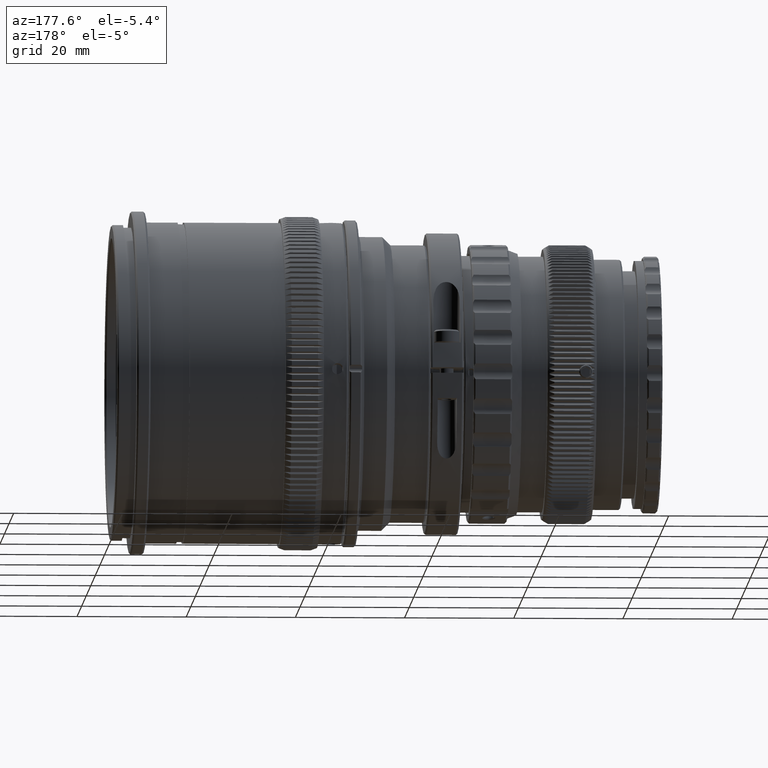
[diagram: clean part render]
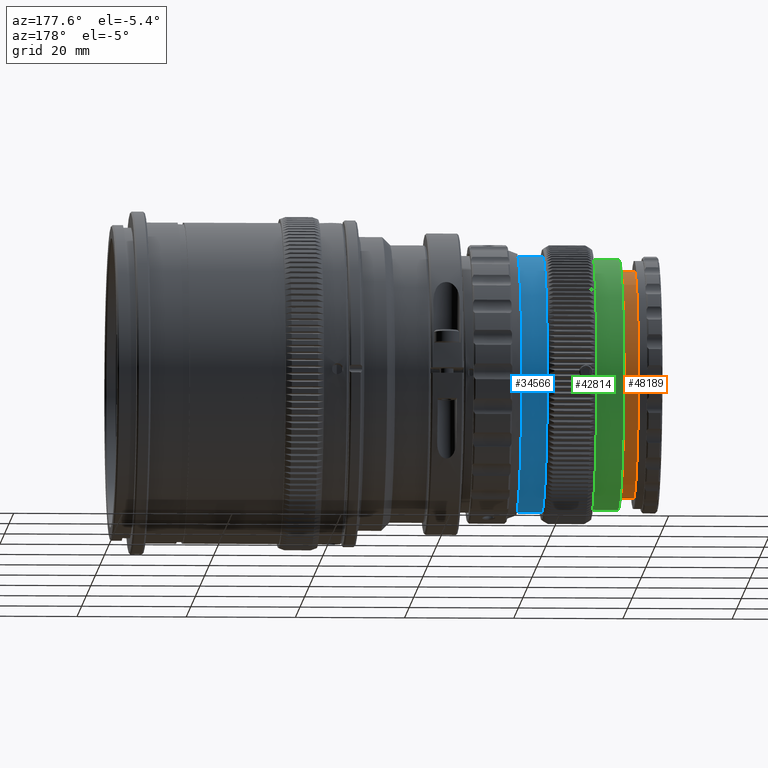
[diagram: same view with three faces highlighted in distinct colors, each labeled with its STEP entity id]
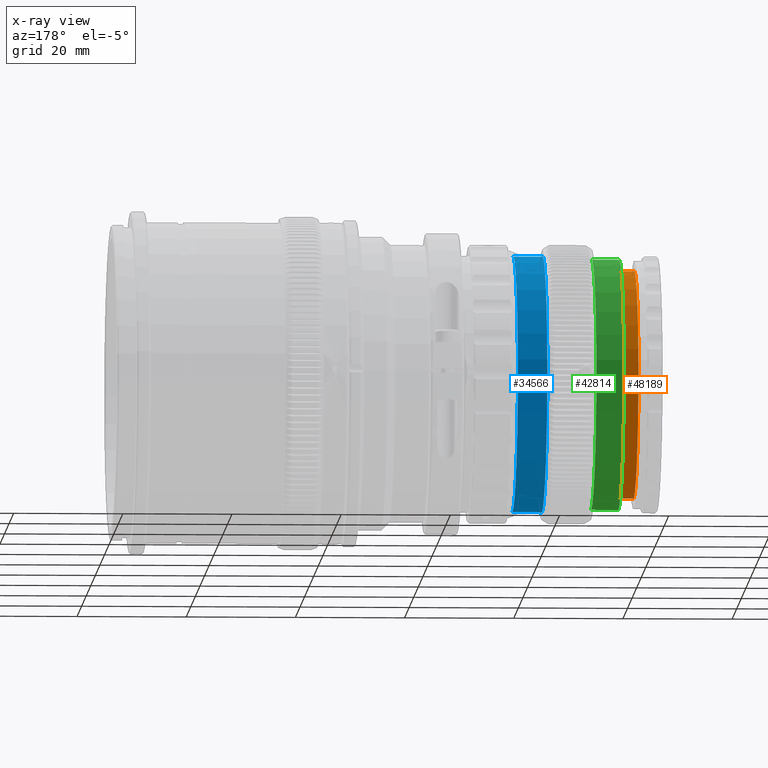
[diagram: x-ray of the same camera — body ghosted, the three highlighted faces saturated]
A machine part, auxiliary view with three faces highlighted in distinct colors.
The next image is the same camera in x-ray (body ghosted, the three faces saturated) — at least one of them is partly hidden behind the body in this view.
Their STEP definitions:

[orange] entity #48189 — the highlighted cylindrical surface (partial cylindrical patch) has radius 20.9 mm, axis along (-1, -0, -0).
#433 = CARTESIAN_POINT ( 'NONE',  ( -57.78904247734860200, 2.342671375720867400E-015, -20.89999999999999900 ) ) ;
#12004 = ORIENTED_EDGE ( 'NONE', *, *, #72750, .T. ) ;
#12377 = DIRECTION ( 'NONE',  ( 0.0000000000000000000, 0.0000000000000000000, 1.000000000000000000 ) ) ;
#12557 = FACE_OUTER_BOUND ( 'NONE', #58946, .T. ) ;
#13363 = EDGE_CURVE ( 'NONE', #27593, #34707, #46243, .T. ) ;
#13941 = CARTESIAN_POINT ( 'NONE',  ( -39.98904247734859800, -2.168404344971008900E-016, 20.89999999999999900 ) ) ;
#17643 = VERTEX_POINT ( 'NONE', #433 ) ;
#19867 = CARTESIAN_POINT ( 'NONE',  ( -39.98904247734859800, 2.342671375720867400E-015, -20.89999999999999900 ) ) ;
#22526 = AXIS2_PLACEMENT_3D ( 'NONE', #36447, #80787, #49221 ) ;
#22879 = CARTESIAN_POINT ( 'NONE',  ( -53.98904247734859800, 2.342671375720867400E-015, -20.89999999999999900 ) ) ;
#27412 = CARTESIAN_POINT ( 'NONE',  ( -57.78904247734860200, -2.168404344971008900E-016, 20.89999999999999900 ) ) ;
#27593 = VERTEX_POINT ( 'NONE', #63967 ) ;
#28146 = AXIS2_PLACEMENT_3D ( 'NONE', #57112, #43995, #37120 ) ;
#28167 = EDGE_CURVE ( 'NONE', #27593, #68499, #75854, .T. ) ;
#33372 = VECTOR ( 'NONE', #58424, 1000.000000000000000 ) ;
#34707 = VERTEX_POINT ( 'NONE', #27412 ) ;
#36447 = CARTESIAN_POINT ( 'NONE',  ( -53.98904247734859800, -2.168404344971008900E-016, 0.0000000000000000000 ) ) ;
#37120 = DIRECTION ( 'NONE',  ( 0.0000000000000000000, 0.0000000000000000000, 1.000000000000000000 ) ) ;
#37664 = CARTESIAN_POINT ( 'NONE',  ( -57.78904247734860200, -2.168404344971008900E-016, 0.0000000000000000000 ) ) ;
#37935 = DIRECTION ( 'NONE',  ( 1.000000000000000000, 0.0000000000000000000, 0.0000000000000000000 ) ) ;
#39201 = VECTOR ( 'NONE', #40397, 1000.000000000000000 ) ;
#40397 = DIRECTION ( 'NONE',  ( -1.000000000000000000, -0.0000000000000000000, -0.0000000000000000000 ) ) ;
#40548 = AXIS2_PLACEMENT_3D ( 'NONE', #37664, #37935, #12377 ) ;
#43825 = ORIENTED_EDGE ( 'NONE', *, *, #13363, .F. ) ;
#43995 = DIRECTION ( 'NONE',  ( -1.000000000000000000, -0.0000000000000000000, -0.0000000000000000000 ) ) ;
#46243 = LINE ( 'NONE', #13941, #33372 ) ;
#48189 = ADVANCED_FACE ( 'NONE', ( #12557 ), #48425, .T. ) ;
#48425 = CYLINDRICAL_SURFACE ( 'NONE', #28146, 20.89999999999999900 ) ;
#49200 = ORIENTED_EDGE ( 'NONE', *, *, #28167, .T. ) ;
#49221 = DIRECTION ( 'NONE',  ( 0.0000000000000000000, 0.0000000000000000000, 1.000000000000000000 ) ) ;
#50687 = EDGE_CURVE ( 'NONE', #68499, #17643, #74939, .T. ) ;
#57112 = CARTESIAN_POINT ( 'NONE',  ( -39.98904247734859800, -2.168404344971008900E-016, 0.0000000000000000000 ) ) ;
#58424 = DIRECTION ( 'NONE',  ( -1.000000000000000000, -0.0000000000000000000, -0.0000000000000000000 ) ) ;
#58946 = EDGE_LOOP ( 'NONE', ( #49200, #78685, #12004, #43825 ) ) ;
#63967 = CARTESIAN_POINT ( 'NONE',  ( -53.98904247734859800, -2.168404344971008900E-016, 20.89999999999999900 ) ) ;
#68499 = VERTEX_POINT ( 'NONE', #22879 ) ;
#72750 = EDGE_CURVE ( 'NONE', #17643, #34707, #73095, .T. ) ;
#73095 = CIRCLE ( 'NONE', #40548, 20.89999999999999900 ) ;
#74939 = LINE ( 'NONE', #19867, #39201 ) ;
#75854 = CIRCLE ( 'NONE', #22526, 20.89999999999999900 ) ;
#78685 = ORIENTED_EDGE ( 'NONE', *, *, #50687, .T. ) ;
#80787 = DIRECTION ( 'NONE',  ( -1.000000000000000000, -0.0000000000000000000, -0.0000000000000000000 ) ) ;

[blue] entity #34566 — the highlighted cylindrical surface (partial cylindrical patch) has radius 23.5 mm, axis along (-1, -0, -0).
#4802 = AXIS2_PLACEMENT_3D ( 'NONE', #13775, #39045, #57162 ) ;
#5942 = DIRECTION ( 'NONE',  ( 1.000000000000000000, -0.0000000000000000000, -0.0000000000000000000 ) ) ;
#7768 = VERTEX_POINT ( 'NONE', #79605 ) ;
#9812 = CYLINDRICAL_SURFACE ( 'NONE', #4802, 23.49999999999996400 ) ;
#11059 = VERTEX_POINT ( 'NONE', #81214 ) ;
#13744 = VERTEX_POINT ( 'NONE', #26533 ) ;
#13775 = CARTESIAN_POINT ( 'NONE',  ( -28.28314247734856200, 0.0000000000000000000, 0.0000000000000000000 ) ) ;
#15180 = CARTESIAN_POINT ( 'NONE',  ( -35.58314247734857400, 0.0000000000000000000, 23.49999999999996400 ) ) ;
#16872 = EDGE_CURVE ( 'NONE', #11059, #77476, #21086, .T. ) ;
#17127 = CARTESIAN_POINT ( 'NONE',  ( -28.28314247734856200, 0.0000000000000000000, 23.49999999999996400 ) ) ;
#18111 = VECTOR ( 'NONE', #67473, 1000.000000000000000 ) ;
#21086 = CIRCLE ( 'NONE', #71510, 23.49999999999996400 ) ;
#24435 = DIRECTION ( 'NONE',  ( 1.000000000000000000, 0.0000000000000000000, 0.0000000000000000000 ) ) ;
#26533 = CARTESIAN_POINT ( 'NONE',  ( -40.98314247734856500, 2.877919977996276000E-015, -23.49999999999996400 ) ) ;
#30905 = CIRCLE ( 'NONE', #33256, 23.49999999999996400 ) ;
#32954 = DIRECTION ( 'NONE',  ( -1.000000000000000000, -0.0000000000000000000, -0.0000000000000000000 ) ) ;
#33256 = AXIS2_PLACEMENT_3D ( 'NONE', #81586, #24435, #68944 ) ;
#34566 = ADVANCED_FACE ( 'NONE', ( #48605 ), #9812, .T. ) ;
#37028 = LINE ( 'NONE', #17127, #18111 ) ;
#37098 = DIRECTION ( 'NONE',  ( 0.0000000000000000000, 0.0000000000000000000, 1.000000000000000000 ) ) ;
#39034 = LINE ( 'NONE', #57693, #58933 ) ;
#39045 = DIRECTION ( 'NONE',  ( -1.000000000000000000, -0.0000000000000000000, -0.0000000000000000000 ) ) ;
#39487 = EDGE_CURVE ( 'NONE', #11059, #13744, #39034, .T. ) ;
#41256 = EDGE_CURVE ( 'NONE', #77476, #7768, #37028, .T. ) ;
#44643 = ORIENTED_EDGE ( 'NONE', *, *, #16872, .F. ) ;
#48605 = FACE_OUTER_BOUND ( 'NONE', #81106, .T. ) ;
#56010 = CARTESIAN_POINT ( 'NONE',  ( -35.58314247734857400, 0.0000000000000000000, 0.0000000000000000000 ) ) ;
#57162 = DIRECTION ( 'NONE',  ( 0.0000000000000000000, 0.0000000000000000000, 1.000000000000000000 ) ) ;
#57693 = CARTESIAN_POINT ( 'NONE',  ( -28.28314247734856200, 2.877919977996276000E-015, -23.49999999999996400 ) ) ;
#58933 = VECTOR ( 'NONE', #32954, 1000.000000000000000 ) ;
#63557 = ORIENTED_EDGE ( 'NONE', *, *, #81662, .T. ) ;
#67473 = DIRECTION ( 'NONE',  ( -1.000000000000000000, -0.0000000000000000000, -0.0000000000000000000 ) ) ;
#68944 = DIRECTION ( 'NONE',  ( 0.0000000000000000000, 0.0000000000000000000, 1.000000000000000000 ) ) ;
#71510 = AXIS2_PLACEMENT_3D ( 'NONE', #56010, #5942, #37098 ) ;
#72710 = ORIENTED_EDGE ( 'NONE', *, *, #39487, .T. ) ;
#77476 = VERTEX_POINT ( 'NONE', #15180 ) ;
#78773 = ORIENTED_EDGE ( 'NONE', *, *, #41256, .F. ) ;
#79605 = CARTESIAN_POINT ( 'NONE',  ( -40.98314247734856500, 0.0000000000000000000, 23.49999999999996400 ) ) ;
#81106 = EDGE_LOOP ( 'NONE', ( #44643, #72710, #63557, #78773 ) ) ;
#81214 = CARTESIAN_POINT ( 'NONE',  ( -35.58314247734857400, 2.877919977996276000E-015, -23.49999999999996400 ) ) ;
#81586 = CARTESIAN_POINT ( 'NONE',  ( -40.98314247734856500, 0.0000000000000000000, 0.0000000000000000000 ) ) ;
#81662 = EDGE_CURVE ( 'NONE', #13744, #7768, #30905, .T. ) ;

[green] entity #42814 — the highlighted cylindrical surface (partial cylindrical patch) has radius 23 mm, axis along (-1, -0, -0).
#9671 = DIRECTION ( 'NONE',  ( -1.000000000000000000, -0.0000000000000000000, -0.0000000000000000000 ) ) ;
#10156 = ORIENTED_EDGE ( 'NONE', *, *, #36594, .F. ) ;
#15549 = CARTESIAN_POINT ( 'NONE',  ( -54.98314247734855800, 2.816687638038913100E-015, -23.00000000000000400 ) ) ;
#17135 = EDGE_CURVE ( 'NONE', #51913, #30112, #78679, .T. ) ;
#18186 = AXIS2_PLACEMENT_3D ( 'NONE', #72492, #9671, #34446 ) ;
#19192 = CARTESIAN_POINT ( 'NONE',  ( -28.28314247734856200, 2.816687638038912400E-015, -23.00000000000000000 ) ) ;
#19256 = AXIS2_PLACEMENT_3D ( 'NONE', #72090, #34023, #46787 ) ;
#19787 = VERTEX_POINT ( 'NONE', #15549 ) ;
#23453 = CIRCLE ( 'NONE', #18186, 23.00000000000000400 ) ;
#29742 = AXIS2_PLACEMENT_3D ( 'NONE', #35680, #35953, #61505 ) ;
#30112 = VERTEX_POINT ( 'NONE', #73023 ) ;
#33898 = ORIENTED_EDGE ( 'NONE', *, *, #17135, .T. ) ;
#34023 = DIRECTION ( 'NONE',  ( -1.000000000000000000, -0.0000000000000000000, -0.0000000000000000000 ) ) ;
#34301 = EDGE_CURVE ( 'NONE', #51913, #46979, #46571, .T. ) ;
#34446 = DIRECTION ( 'NONE',  ( 0.0000000000000000000, 0.0000000000000000000, -1.000000000000000000 ) ) ;
#35680 = CARTESIAN_POINT ( 'NONE',  ( -28.28314247734856200, 0.0000000000000000000, 0.0000000000000000000 ) ) ;
#35953 = DIRECTION ( 'NONE',  ( -1.000000000000000000, -0.0000000000000000000, -0.0000000000000000000 ) ) ;
#36594 = EDGE_CURVE ( 'NONE', #46979, #19787, #23453, .T. ) ;
#39132 = VECTOR ( 'NONE', #63677, 1000.000000000000000 ) ;
#41604 = VECTOR ( 'NONE', #54439, 1000.000000000000000 ) ;
#42814 = ADVANCED_FACE ( 'NONE', ( #59971 ), #51958, .T. ) ;
#46571 = LINE ( 'NONE', #54706, #41604 ) ;
#46787 = DIRECTION ( 'NONE',  ( 0.0000000000000000000, 0.0000000000000000000, 1.000000000000000000 ) ) ;
#46979 = VERTEX_POINT ( 'NONE', #54950 ) ;
#48761 = CARTESIAN_POINT ( 'NONE',  ( -49.98314247734855800, 0.0000000000000000000, 23.00000000000000000 ) ) ;
#49167 = LINE ( 'NONE', #19192, #39132 ) ;
#51913 = VERTEX_POINT ( 'NONE', #48761 ) ;
#51958 = CYLINDRICAL_SURFACE ( 'NONE', #29742, 23.00000000000000000 ) ;
#53055 = EDGE_CURVE ( 'NONE', #30112, #19787, #49167, .T. ) ;
#54439 = DIRECTION ( 'NONE',  ( -1.000000000000000000, -0.0000000000000000000, -0.0000000000000000000 ) ) ;
#54706 = CARTESIAN_POINT ( 'NONE',  ( -28.28314247734856200, 0.0000000000000000000, 23.00000000000000000 ) ) ;
#54950 = CARTESIAN_POINT ( 'NONE',  ( -54.98314247734855800, 0.0000000000000000000, 23.00000000000000400 ) ) ;
#59971 = FACE_OUTER_BOUND ( 'NONE', #63023, .T. ) ;
#61505 = DIRECTION ( 'NONE',  ( 0.0000000000000000000, 0.0000000000000000000, 1.000000000000000000 ) ) ;
#63023 = EDGE_LOOP ( 'NONE', ( #33898, #75959, #10156, #76121 ) ) ;
#63677 = DIRECTION ( 'NONE',  ( -1.000000000000000000, -0.0000000000000000000, -0.0000000000000000000 ) ) ;
#72090 = CARTESIAN_POINT ( 'NONE',  ( -49.98314247734855800, 0.0000000000000000000, 0.0000000000000000000 ) ) ;
#72492 = CARTESIAN_POINT ( 'NONE',  ( -54.98314247734855800, 0.0000000000000000000, 0.0000000000000000000 ) ) ;
#73023 = CARTESIAN_POINT ( 'NONE',  ( -49.98314247734855800, 2.816687638038912400E-015, -23.00000000000000000 ) ) ;
#75959 = ORIENTED_EDGE ( 'NONE', *, *, #53055, .T. ) ;
#76121 = ORIENTED_EDGE ( 'NONE', *, *, #34301, .F. ) ;
#78679 = CIRCLE ( 'NONE', #19256, 23.00000000000000000 ) ;